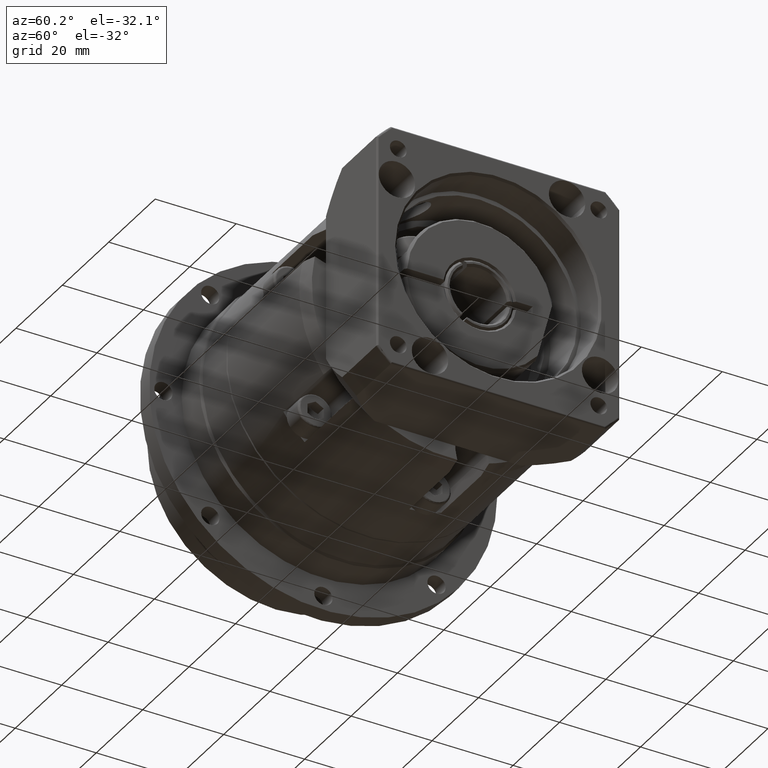
[diagram: clean part render]
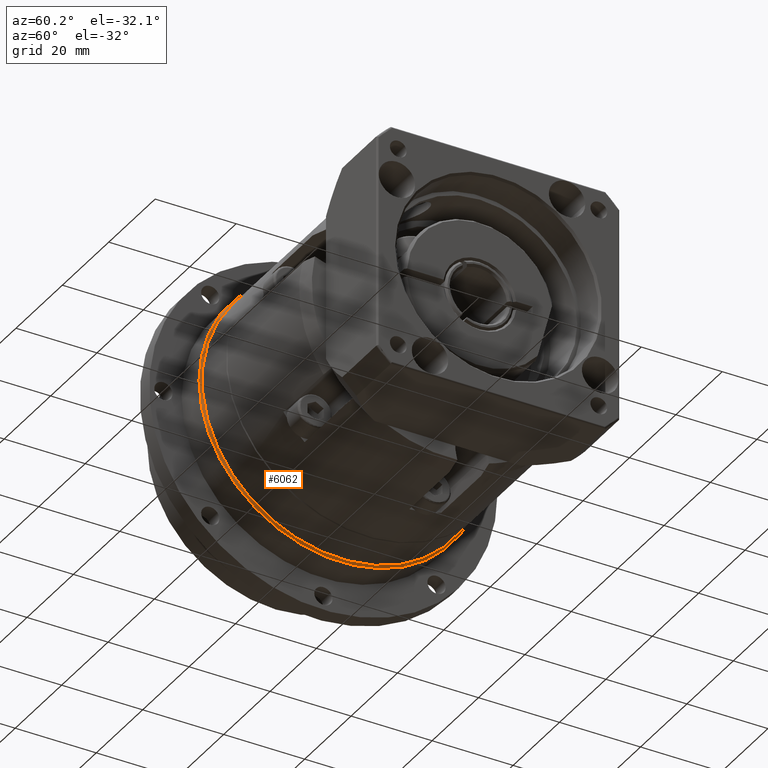
[diagram: same view with one face highlighted and labeled with its STEP entity id]
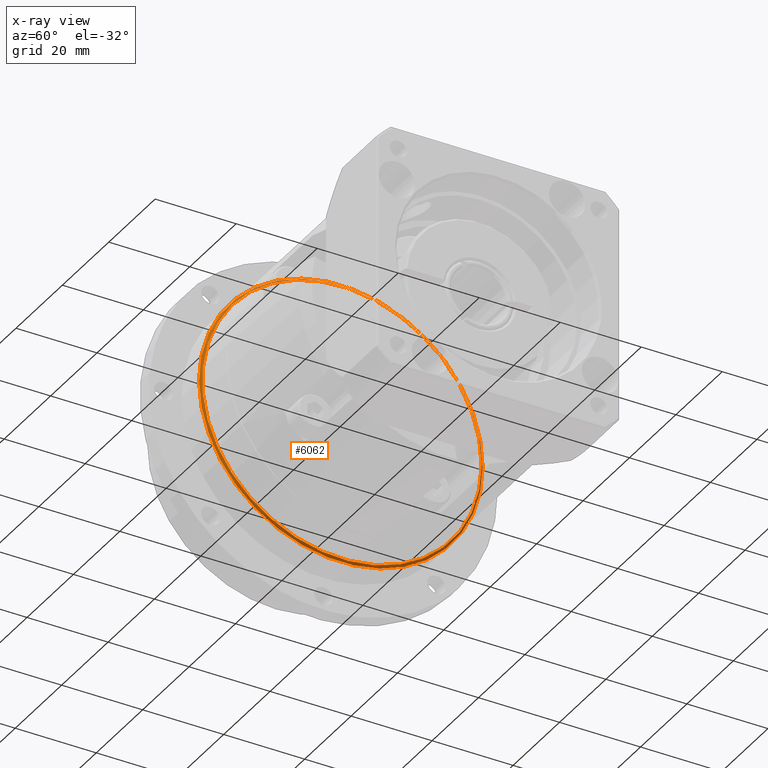
[diagram: x-ray of the same camera — body ghosted, the highlighted face saturated]
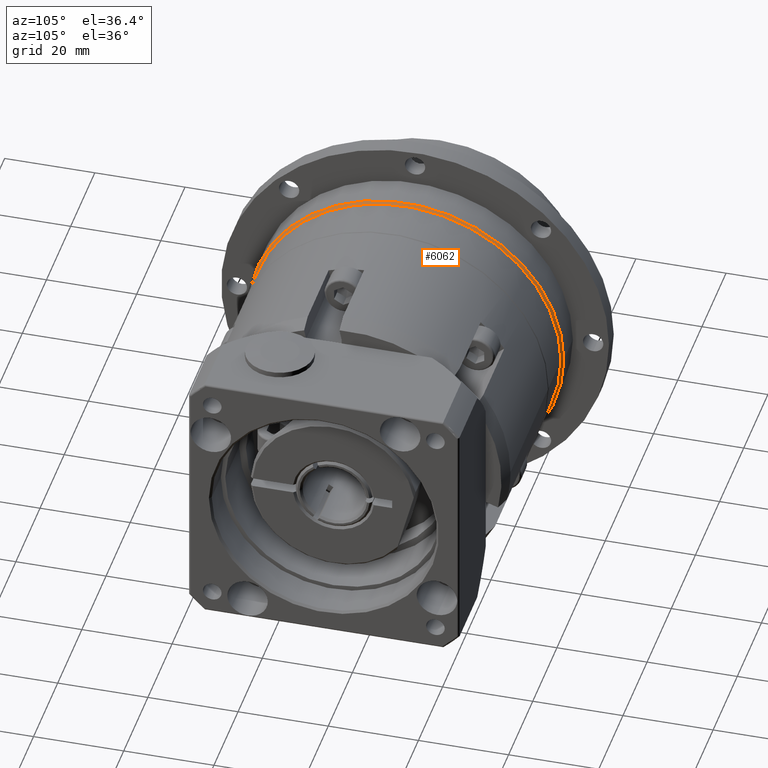
[diagram: same view with one face highlighted and labeled with its STEP entity id]
A machine part, auxiliary view. The second image highlights one B-rep face of the part: STEP entity #6062.
The next image is the same camera in x-ray: the body ghosted, the highlighted face saturated — about 16% of this face is hidden behind the body in this view.
A second angle (auxiliary view) of the same face is appended — the face is thin or edge-on in the first view.
In plain terms, the highlighted conical surface has half-angle 45 deg.
Its self-contained STEP definition (entity closure, byte-faithful):
#797=CONICAL_SURFACE('',#6760,34.75,45.0000000000001);
#1208=FACE_BOUND('',#2091,.T.);
#1529=FACE_OUTER_BOUND('',#2090,.T.);
#2090=EDGE_LOOP('',(#4894));
#2091=EDGE_LOOP('',(#4895));
#2475=CIRCLE('',#6717,34.5);
#2500=CIRCLE('',#6759,35.);
#2937=VERTEX_POINT('',#10203);
#2962=VERTEX_POINT('',#10270);
#3617=EDGE_CURVE('',#2937,#2937,#2475,.T.);
#3642=EDGE_CURVE('',#2962,#2962,#2500,.T.);
#4894=ORIENTED_EDGE('',*,*,#3617,.F.);
#4895=ORIENTED_EDGE('',*,*,#3642,.T.);
#6062=ADVANCED_FACE('',(#1529,#1208),#797,.T.);
#6717=AXIS2_PLACEMENT_3D('',#10204,#8170,#8171);
#6759=AXIS2_PLACEMENT_3D('',#10271,#8254,#8255);
#6760=AXIS2_PLACEMENT_3D('',#10272,#8256,#8257);
#8170=DIRECTION('center_axis',(1.,-4.82253126321556E-16,2.92855270575438E-15));
#8171=DIRECTION('ref_axis',(2.92855270575439E-15,3.1086244689506E-15,-1.));
#8254=DIRECTION('center_axis',(1.,-4.82253126321556E-16,2.92855270575438E-15));
#8255=DIRECTION('ref_axis',(2.92855270575438E-15,3.1086244689506E-15,-1.));
#8256=DIRECTION('center_axis',(-1.,4.82253126321556E-16,-2.92855270575438E-15));
#8257=DIRECTION('ref_axis',(4.82253126321546E-16,1.,3.10862446895061E-15));
#10203=CARTESIAN_POINT('',(-21.0076060326597,-10.0811336692429,18.8582107166002));
#10204=CARTESIAN_POINT('Origin',(-21.0076060326597,-44.5811336692429,18.8582107166001));
#10270=CARTESIAN_POINT('',(-21.5076060326597,-9.58113366924287,18.8582107166002));
#10271=CARTESIAN_POINT('Origin',(-21.5076060326597,-44.5811336692429,18.8582107166001));
#10272=CARTESIAN_POINT('Origin',(-21.2576060326597,-44.5811336692429,18.8582107166001));